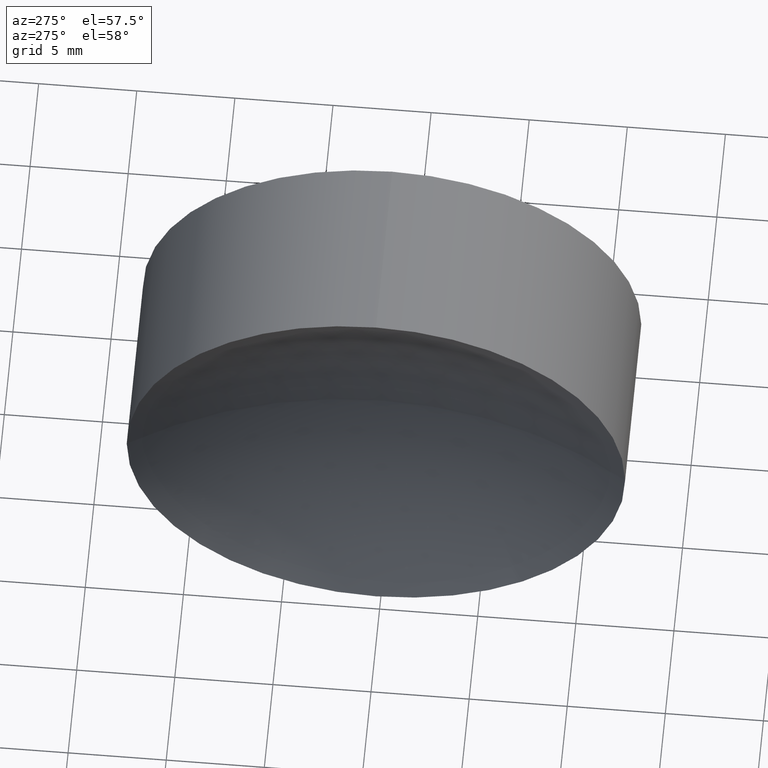
[diagram: clean part render]
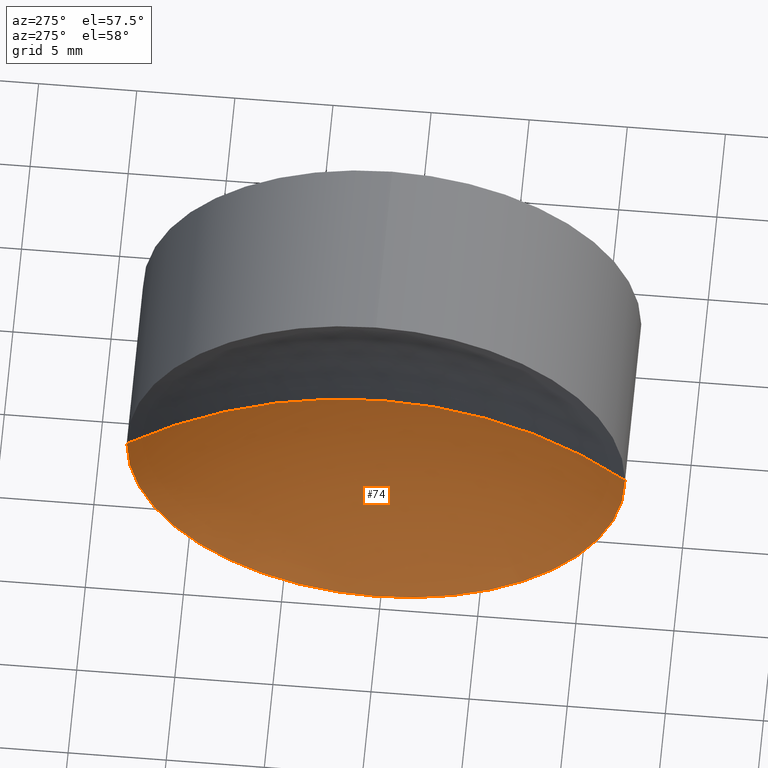
[diagram: same view with one face highlighted and labeled with its STEP entity id]
A machine part, auxiliary view. The second image highlights one B-rep face of the part: STEP entity #74.
In plain terms, the highlighted spherical surface has radius 23.6 mm.
Its self-contained STEP definition (entity closure, byte-faithful):
#15 = CARTESIAN_POINT ( 'NONE',  ( 115.3941588982569800, 65.22260287298739500, 0.0000000000000000000 ) ) ;
#18 = VERTEX_POINT ( 'NONE', #183 ) ;
#19 = CIRCLE ( 'NONE', #212, 12.69999999999998900 ) ;
#22 = CARTESIAN_POINT ( 'NONE',  ( 115.3941588982569800, 52.52260287298740600, -1.555301434917137100E-015 ) ) ;
#28 = DIRECTION ( 'NONE',  ( 0.0000000000000000000, 1.224646799147353200E-016, -1.000000000000000000 ) ) ;
#35 = DIRECTION ( 'NONE',  ( 0.0000000000000000000, 0.0000000000000000000, 1.000000000000000000 ) ) ;
#37 = VERTEX_POINT ( 'NONE', #22 ) ;
#43 = CARTESIAN_POINT ( 'NONE',  ( 115.3941588982569800, 65.22260287298739500, -12.69999999999998900 ) ) ;
#53 = VERTEX_POINT ( 'NONE', #133 ) ;
#69 = DIRECTION ( 'NONE',  ( 0.0000000000000000000, 0.0000000000000000000, 1.000000000000000000 ) ) ;
#72 = DIRECTION ( 'NONE',  ( -1.000000000000000000, -0.0000000000000000000, -0.0000000000000000000 ) ) ;
#73 = DIRECTION ( 'NONE',  ( 0.0000000000000000000, 1.000000000000000000, 1.224646799147353500E-016 ) ) ;
#74 = ADVANCED_FACE ( 'NONE', ( #94 ), #169, .F. ) ;
#76 = ORIENTED_EDGE ( 'NONE', *, *, #96, .F. ) ;
#80 = AXIS2_PLACEMENT_3D ( 'NONE', #118, #136, #35 ) ;
#84 = CIRCLE ( 'NONE', #80, 12.69999999999998900 ) ;
#85 = AXIS2_PLACEMENT_3D ( 'NONE', #115, #111, #199 ) ;
#94 = FACE_OUTER_BOUND ( 'NONE', #108, .T. ) ;
#96 = EDGE_CURVE ( 'NONE', #53, #37, #232, .T. ) ;
#97 = VERTEX_POINT ( 'NONE', #43 ) ;
#108 = EDGE_LOOP ( 'NONE', ( #76, #204, #228, #158 ) ) ;
#111 = DIRECTION ( 'NONE',  ( 0.0000000000000000000, 0.0000000000000000000, -1.000000000000000000 ) ) ;
#115 = CARTESIAN_POINT ( 'NONE',  ( 95.50270344622933300, 65.22260287298739500, 0.0000000000000000000 ) ) ;
#118 = CARTESIAN_POINT ( 'NONE',  ( 115.3941588982569800, 65.22260287298739500, 0.0000000000000000000 ) ) ;
#125 = EDGE_CURVE ( 'NONE', #18, #97, #19, .T. ) ;
#133 = CARTESIAN_POINT ( 'NONE',  ( 119.1027034462293400, 65.22260287298739500, 0.0000000000000000000 ) ) ;
#136 = DIRECTION ( 'NONE',  ( -1.000000000000000000, -0.0000000000000000000, -0.0000000000000000000 ) ) ;
#137 = DIRECTION ( 'NONE',  ( 0.0000000000000000000, 0.0000000000000000000, 1.000000000000000000 ) ) ;
#158 = ORIENTED_EDGE ( 'NONE', *, *, #219, .T. ) ;
#169 = SPHERICAL_SURFACE ( 'NONE', #85, 23.59999999999999400 ) ;
#170 = AXIS2_PLACEMENT_3D ( 'NONE', #189, #28, #73 ) ;
#177 = AXIS2_PLACEMENT_3D ( 'NONE', #218, #137, #227 ) ;
#181 = EDGE_CURVE ( 'NONE', #53, #18, #184, .T. ) ;
#183 = CARTESIAN_POINT ( 'NONE',  ( 115.3941588982569800, 77.92260287298738300, 0.0000000000000000000 ) ) ;
#184 = CIRCLE ( 'NONE', #177, 23.59999999999999400 ) ;
#189 = CARTESIAN_POINT ( 'NONE',  ( 95.50270344622933300, 65.22260287298739500, 0.0000000000000000000 ) ) ;
#199 = DIRECTION ( 'NONE',  ( 0.0000000000000000000, 1.000000000000000000, 0.0000000000000000000 ) ) ;
#204 = ORIENTED_EDGE ( 'NONE', *, *, #181, .T. ) ;
#212 = AXIS2_PLACEMENT_3D ( 'NONE', #15, #72, #69 ) ;
#218 = CARTESIAN_POINT ( 'NONE',  ( 95.50270344622933300, 65.22260287298739500, 0.0000000000000000000 ) ) ;
#219 = EDGE_CURVE ( 'NONE', #97, #37, #84, .T. ) ;
#227 = DIRECTION ( 'NONE',  ( 1.000000000000000000, 0.0000000000000000000, 0.0000000000000000000 ) ) ;
#228 = ORIENTED_EDGE ( 'NONE', *, *, #125, .T. ) ;
#232 = CIRCLE ( 'NONE', #170, 23.59999999999999400 ) ;